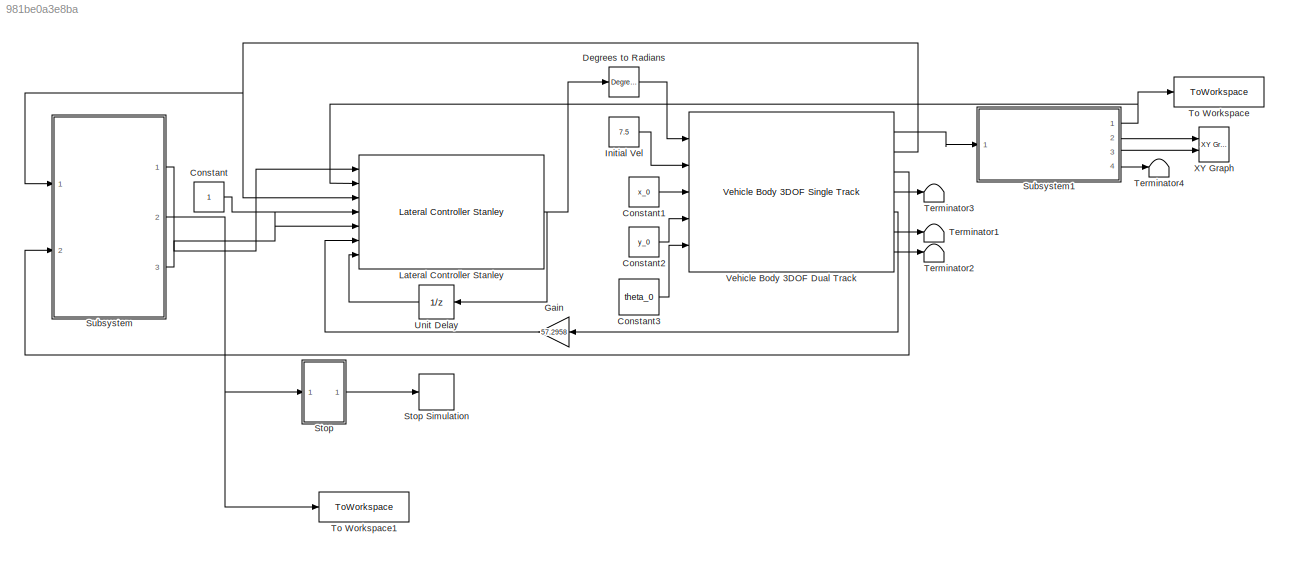
MODEL slx_981be0a3e8ba
KIND model
CONFIG AbsTol = auto
CONFIG EnableMultiTasking = off
CONFIG FixedStep = auto
CONFIG MaxStep = auto
CONFIG MinStep = auto
CONFIG RelTol = 1e-3
CONFIG SampleTimeConstraint = Unconstrained
CONFIG SolverName = VariableStepAuto
CONFIG StartTime = 0.0
CONFIG StopTime = inf
BLOCK [Constant] Constant
BLOCK [Constant] Constant1
  Value = x_0
BLOCK [Constant] Constant2
  Value = y_0
BLOCK [Constant] Constant3
  Value = theta_0
BLOCK [Reference] Degrees to Radians  REF=simulink_extras/Transformations/Degrees to
Radians
  Ports = [1, 1]
  SourceBlock = simulink_extras/Transformations/Degrees to\nRadians
  SourceProductBaseCode = SL
  SourceType = DegreesToRadians
BLOCK [Gain] Gain
  Gain = 57.2958
BLOCK [Constant] Initial Vel
  Value = 7.5
BLOCK [Reference] Lateral Controller Stanley  REF=drivingvehiclecontroller/Lateral Controller Stanley
  Ports = [7, 1]
  SourceBlock = drivingvehiclecontroller/Lateral Controller Stanley
  SourceProductBaseCode = DR
  SourceType = Lateral Controller Stanley
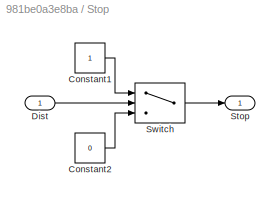
BLOCK [SubSystem] Stop
  Ports = [1, 1]
  RequestExecContextInheritance = off
BLOCK [Stop] Stop Simulation
BLOCK [Constant] Stop/Constant1
BLOCK [Constant] Stop/Constant2
  Value = 0
BLOCK [Inport] Stop/Dist
BLOCK [Outport] Stop/Stop
BLOCK [Switch] Stop/Switch
  Criteria = u2 > Threshold
  InputSameDT = off
  SaturateOnIntegerOverflow = off
  Threshold = dist(end,1)
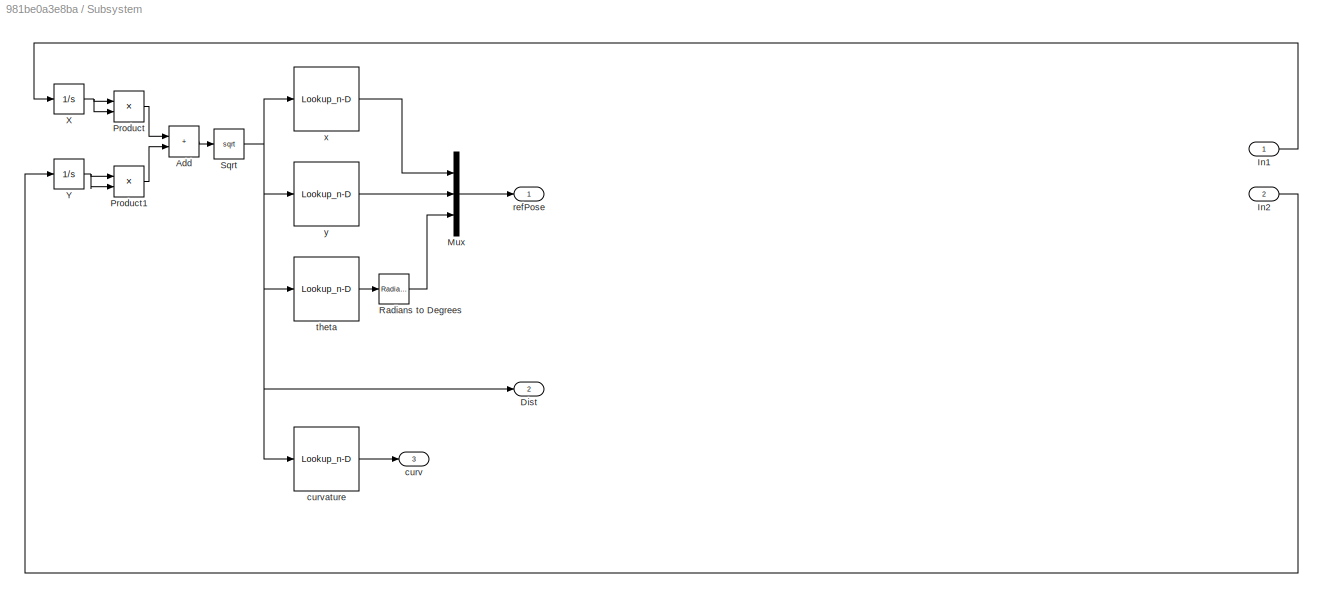
BLOCK [SubSystem] Subsystem
  Ports = [2, 3]
  RequestExecContextInheritance = off
BLOCK [Sum] Subsystem/Add
  IconShape = rectangular
  Ports = [2, 1]
BLOCK [Outport] Subsystem/Dist
  Port = 2
BLOCK [Inport] Subsystem/In1
BLOCK [Inport] Subsystem/In2
  Port = 2
BLOCK [Mux] Subsystem/Mux
  DisplayOption = bar
  Inputs = 3
  Ports = [3, 1]
BLOCK [Product] Subsystem/Product
  Ports = [2, 1]
BLOCK [Product] Subsystem/Product1
  Ports = [2, 1]
BLOCK [Reference] Subsystem/Radians to Degrees  REF=simulink_extras/Transformations/Radians
to Degrees
  Ports = [1, 1]
  SourceBlock = simulink_extras/Transformations/Radians\nto Degrees
  SourceProductBaseCode = SL
  SourceType = RadiansToDegrees
BLOCK [Sqrt] Subsystem/Sqrt
BLOCK [Integrator] Subsystem/X
  Ports = [1, 1]
BLOCK [Integrator] Subsystem/Y
  Ports = [1, 1]
BLOCK [Outport] Subsystem/curv
  Port = 3
BLOCK [Lookup_n-D] Subsystem/curvature
  BreakpointsForDimension1 = dist_ref
  BreakpointsForDimension3 = [5, 7]
  InputPortMap = u0
  InternalRulePriority = Speed
  NumberOfTableDimensions = 1
  Ports = [1, 1]
  RndMeth = Simplest
  Table = curvature
BLOCK [Outport] Subsystem/refPose
BLOCK [Lookup_n-D] Subsystem/theta
  BreakpointsForDimension1 = dist_ref
  BreakpointsForDimension3 = [5, 7]
  InputPortMap = u0
  InternalRulePriority = Speed
  NumberOfTableDimensions = 1
  Ports = [1, 1]
  RndMeth = Simplest
  Table = theta_ref2
BLOCK [Lookup_n-D] Subsystem/x
  BreakpointsForDimension1 = dist_ref
  BreakpointsForDimension3 = [5, 7]
  InputPortMap = u0
  InternalRulePriority = Speed
  NumberOfTableDimensions = 1
  Ports = [1, 1]
  RndMeth = Simplest
  Table = x_ref2
BLOCK [Lookup_n-D] Subsystem/y
  BreakpointsForDimension1 = dist_ref
  BreakpointsForDimension3 = [5, 7]
  InputPortMap = u0
  InternalRulePriority = Speed
  NumberOfTableDimensions = 1
  Ports = [1, 1]
  RndMeth = Simplest
  Table = y_ref2
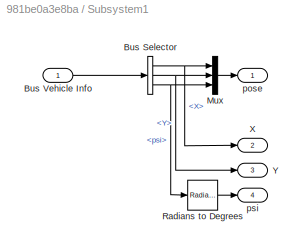
BLOCK [SubSystem] Subsystem1
  Ports = [1, 4]
  RequestExecContextInheritance = off
BLOCK [BusSelector] Subsystem1/Bus Selector
  OutputSignals = InertFrm.Cg.Disp.X,InertFrm.Cg.Disp.Y,InertFrm.Cg.Ang.psi
  Ports = [1, 3]
BLOCK [Inport] Subsystem1/Bus Vehicle Info
BLOCK [Mux] Subsystem1/Mux
  DisplayOption = bar
  Inputs = 3
  Ports = [3, 1]
BLOCK [Reference] Subsystem1/Radians to Degrees  REF=simulink_extras/Transformations/Radians
to Degrees
  Ports = [1, 1]
  SourceBlock = simulink_extras/Transformations/Radians\nto Degrees
  SourceProductBaseCode = SL
  SourceType = RadiansToDegrees
BLOCK [Outport] Subsystem1/X
  Port = 2
BLOCK [Outport] Subsystem1/Y
  Port = 3
BLOCK [Outport] Subsystem1/pose
BLOCK [Outport] Subsystem1/psi
  Port = 4
BLOCK [Terminator] Terminator1
BLOCK [Terminator] Terminator2
BLOCK [Terminator] Terminator3
BLOCK [Terminator] Terminator4
BLOCK [ToWorkspace] To Workspace
  FixptAsFi = on
  MaxDataPoints = inf
  Ports = [1]
  SampleTime = -1
  SaveFormat = Timeseries
  VariableName = currPose
BLOCK [ToWorkspace] To Workspace1
  FixptAsFi = on
  MaxDataPoints = inf
  Ports = [1]
  SampleTime = -1
  SaveFormat = Timeseries
  VariableName = distance
BLOCK [UnitDelay] Unit Delay
  HasFrameUpgradeWarning = on
  SampleTime = -1
BLOCK [Reference] Vehicle Body 3DOF Dual Track  REF=autolibshared/Vehicle Body 3DOF Single Track
  Ports = [5, 7]
  SourceBlock = autolibshared/Vehicle Body 3DOF Single Track
  SourceProductBaseCode = PW,DR,MT,UV,VE
  SourceType = Vehicle Body 3DOF Lateral
BLOCK [Reference] XY Graph  REF=simulink/Sinks/XY Graph
  Ports = [2]
  SourceBlock = simulink/Sinks/XY Graph
  SourceProductBaseCode = SL
  SourceType = XY scope.
LINE Constant1:1 -> Vehicle Body 3DOF Dual Track:3
LINE Constant2:1 -> Vehicle Body 3DOF Dual Track:4
LINE Constant3:1 -> Vehicle Body 3DOF Dual Track:5
LINE Constant:1 -> Lateral Controller Stanley:4
LINE Degrees to Radians:1 -> Vehicle Body 3DOF Dual Track:1
LINE Gain:1 -> Lateral Controller Stanley:6
LINE Initial Vel:1 -> Vehicle Body 3DOF Dual Track:2
NET Lateral Controller Stanley:1 -> Degrees to Radians:1, Unit Delay:1
LINE Stop/Constant1:1 -> Stop/Switch:1
LINE Stop/Constant2:1 -> Stop/Switch:3
LINE Stop/Dist:1 -> Stop/Switch:2
LINE Stop/Switch:1 -> Stop/Stop:1
LINE Stop:1 -> Stop Simulation:1
LINE Subsystem/Add:1 -> Subsystem/Sqrt:1
LINE Subsystem/In1:1 -> Subsystem/X:1
LINE Subsystem/In2:1 -> Subsystem/Y:1
LINE Subsystem/Mux:1 -> Subsystem/refPose:1
LINE Subsystem/Product1:1 -> Subsystem/Add:2
LINE Subsystem/Product:1 -> Subsystem/Add:1
LINE Subsystem/Radians to Degrees:1 -> Subsystem/Mux:3
NET Subsystem/Sqrt:1 -> Subsystem/Dist:1, Subsystem/curvature:1, Subsystem/theta:1, Subsystem/x:1, Subsystem/y:1
NET Subsystem/X:1 -> Subsystem/Product:1, Subsystem/Product:2
NET Subsystem/Y:1 -> Subsystem/Product1:1, Subsystem/Product1:2
LINE Subsystem/curvature:1 -> Subsystem/curv:1
LINE Subsystem/theta:1 -> Subsystem/Radians to Degrees:1
LINE Subsystem/x:1 -> Subsystem/Mux:1
LINE Subsystem/y:1 -> Subsystem/Mux:2
NET Subsystem1/Bus Selector:1 -> Subsystem1/Mux:1, Subsystem1/X:1
NET Subsystem1/Bus Selector:2 -> Subsystem1/Mux:2, Subsystem1/Y:1
NET Subsystem1/Bus Selector:3 -> Subsystem1/Mux:3, Subsystem1/Radians to Degrees:1
LINE Subsystem1/Bus Vehicle Info:1 -> Subsystem1/Bus Selector:1
LINE Subsystem1/Mux:1 -> Subsystem1/pose:1
LINE Subsystem1/Radians to Degrees:1 -> Subsystem1/psi:1
NET Subsystem1:1 -> Lateral Controller Stanley:2, To Workspace:1
LINE Subsystem1:2 -> XY Graph:1
LINE Subsystem1:3 -> XY Graph:2
LINE Subsystem1:4 -> Terminator4:1
LINE Subsystem:1 -> Lateral Controller Stanley:1
NET Subsystem:2 -> Stop:1, To Workspace1:1
LINE Subsystem:3 -> Lateral Controller Stanley:5
LINE Unit Delay:1 -> Lateral Controller Stanley:7
LINE Vehicle Body 3DOF Dual Track:1 -> Subsystem1:1
NET Vehicle Body 3DOF Dual Track:2 -> Lateral Controller Stanley:3, Subsystem:1
LINE Vehicle Body 3DOF Dual Track:3 -> Subsystem:2
LINE Vehicle Body 3DOF Dual Track:4 -> Terminator3:1
LINE Vehicle Body 3DOF Dual Track:5 -> Gain:1
LINE Vehicle Body 3DOF Dual Track:6 -> Terminator1:1
LINE Vehicle Body 3DOF Dual Track:7 -> Terminator2:1
note: NET lines group one-source signal fan-out (src -> all destinations, sorted); 1:1 wires keep LINE
